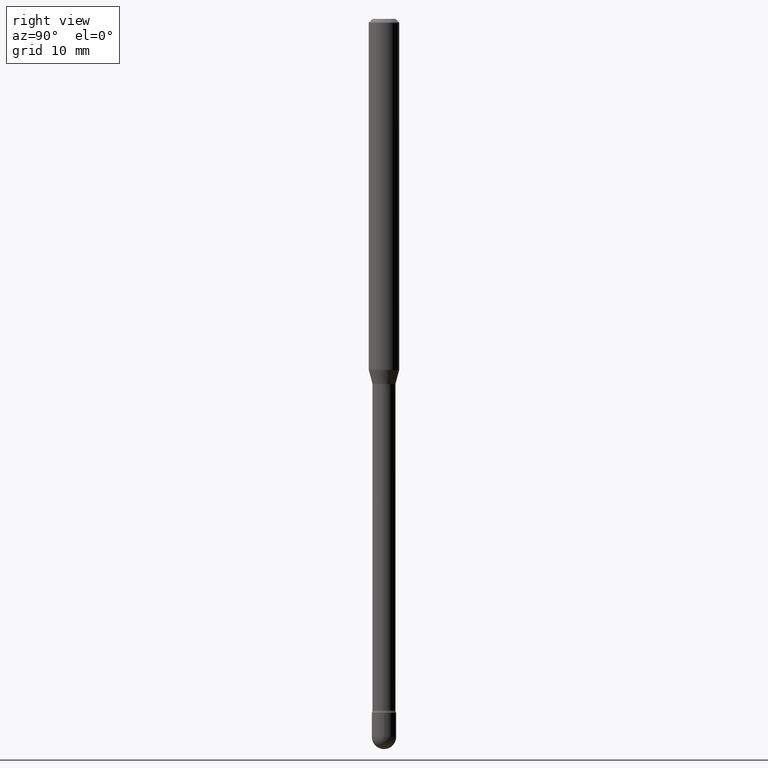
[diagram: clean part render]
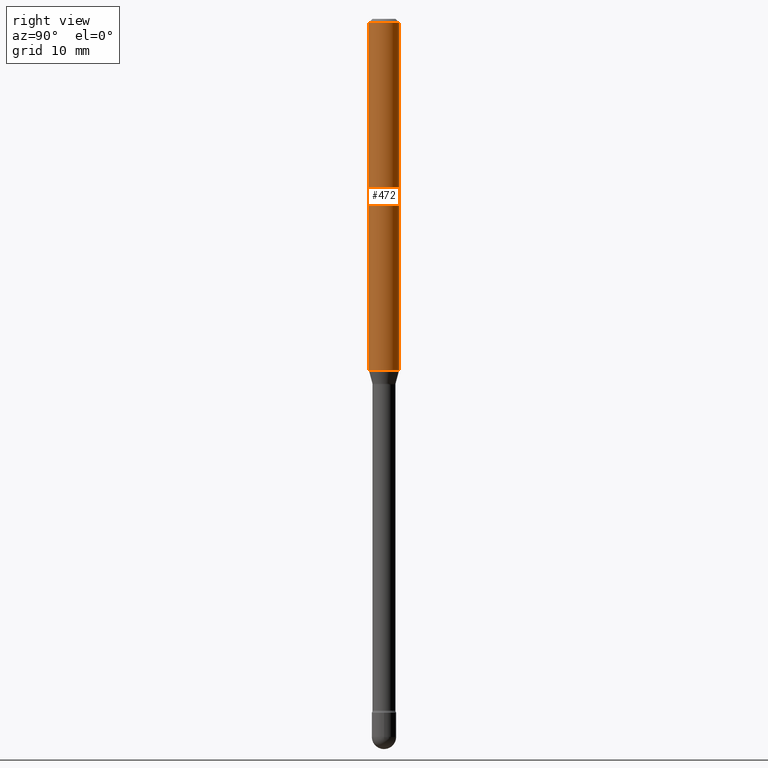
[diagram: same view with one face highlighted and labeled with its STEP entity id]
A machine part, right view. The second image highlights one B-rep face of the part: STEP entity #472.
In plain terms, the highlighted cylindrical surface (edge-blend (fillet) strip) has radius 1.5875 mm, axis along (-0, 0, 1).
Its self-contained STEP definition (entity closure, byte-faithful):
#26 = DIRECTION ( 'NONE',  ( -2.445421076024140334E-29, 3.491549691150324233E-15, 1.000000000000000000 ) ) ;
#32 = EDGE_CURVE ( 'NONE', #211, #385, #359, .T. ) ;
#36 = VECTOR ( 'NONE', #453, 39.37007874015748143 ) ;
#51 = LINE ( 'NONE', #190, #36 ) ;
#60 = CARTESIAN_POINT ( 'NONE',  ( 3.526671860661072103E-29, -5.035349603635358334E-15, -1.442153212482682578 ) ) ;
#72 = DIRECTION ( 'NONE',  ( -6.982962677686265922E-15, -1.000000000000000000, 3.491549691150325021E-15 ) ) ;
#83 = DIRECTION ( 'NONE',  ( -2.445421076024140334E-29, 3.491549691150324233E-15, 1.000000000000000000 ) ) ;
#107 = ORIENTED_EDGE ( 'NONE', *, *, #425, .F. ) ;
#108 = CARTESIAN_POINT ( 'NONE',  ( -1.169113584055446105E-44, 1.669184350826100908E-30, 4.780733988912460139E-16 ) ) ;
#109 = VERTEX_POINT ( 'NONE', #182 ) ;
#126 = VECTOR ( 'NONE', #237, 39.37007874015748143 ) ;
#144 = LINE ( 'NONE', #320, #126 ) ;
#153 = CYLINDRICAL_SURFACE ( 'NONE', #233, 0.06250000000000000000 ) ;
#155 = CARTESIAN_POINT ( 'NONE',  ( 4.440892098500980163E-16, 0.06249999999999499706, -1.442153212482682800 ) ) ;
#171 = AXIS2_PLACEMENT_3D ( 'NONE', #523, #83, #272 ) ;
#182 = CARTESIAN_POINT ( 'NONE',  ( -4.364351673553912750E-16, -0.06250000000000005551, -0.01499999999999986587 ) ) ;
#190 = CARTESIAN_POINT ( 'NONE',  ( -4.364351673553916201E-16, -0.06250000000000000000, 6.962952545881414017E-16 ) ) ;
#200 = FACE_OUTER_BOUND ( 'NONE', #227, .T. ) ;
#208 = DIRECTION ( 'NONE',  ( -6.982962677686265922E-15, -1.000000000000000000, 4.370956789862821150E-15 ) ) ;
#211 = VERTEX_POINT ( 'NONE', #351 ) ;
#214 = ORIENTED_EDGE ( 'NONE', *, *, #510, .F. ) ;
#227 = EDGE_LOOP ( 'NONE', ( #339, #319, #214, #107 ) ) ;
#233 = AXIS2_PLACEMENT_3D ( 'NONE', #108, #286, #72 ) ;
#237 = DIRECTION ( 'NONE',  ( -2.445421076024140334E-29, 3.491549691150324233E-15, 1.000000000000000000 ) ) ;
#260 = AXIS2_PLACEMENT_3D ( 'NONE', #60, #26, #208 ) ;
#272 = DIRECTION ( 'NONE',  ( -6.982962677686265922E-15, -1.000000000000000000, 3.483106191921935554E-15 ) ) ;
#286 = DIRECTION ( 'NONE',  ( -2.445421076024140334E-29, 3.491549691150324233E-15, 1.000000000000000000 ) ) ;
#319 = ORIENTED_EDGE ( 'NONE', *, *, #464, .T. ) ;
#320 = CARTESIAN_POINT ( 'NONE',  ( 4.440892098500625669E-16, 0.06250000000000000000, 2.598515431943507740E-16 ) ) ;
#339 = ORIENTED_EDGE ( 'NONE', *, *, #32, .T. ) ;
#351 = CARTESIAN_POINT ( 'NONE',  ( -4.364351673553561707E-16, -0.06250000000000500988, -1.442153212482682356 ) ) ;
#355 = VERTEX_POINT ( 'NONE', #474 ) ;
#359 = CIRCLE ( 'NONE', #260, 0.06250000000000000000 ) ;
#360 = CIRCLE ( 'NONE', #171, 0.06250000000000000000 ) ;
#385 = VERTEX_POINT ( 'NONE', #155 ) ;
#425 = EDGE_CURVE ( 'NONE', #211, #109, #51, .T. ) ;
#453 = DIRECTION ( 'NONE',  ( -2.445421076024140334E-29, 3.491549691150324233E-15, 1.000000000000000000 ) ) ;
#464 = EDGE_CURVE ( 'NONE', #385, #355, #144, .T. ) ;
#472 = ADVANCED_FACE ( 'NONE', ( #200 ), #153, .T. ) ;
#474 = CARTESIAN_POINT ( 'NONE',  ( 4.440892098500981149E-16, 0.06249999999999995837, -0.01500000000000030129 ) ) ;
#510 = EDGE_CURVE ( 'NONE', #109, #355, #360, .T. ) ;
#523 = CARTESIAN_POINT ( 'NONE',  ( 3.668131614036230645E-31, -5.237324536725515192E-17, -0.01500000000000008271 ) ) ;